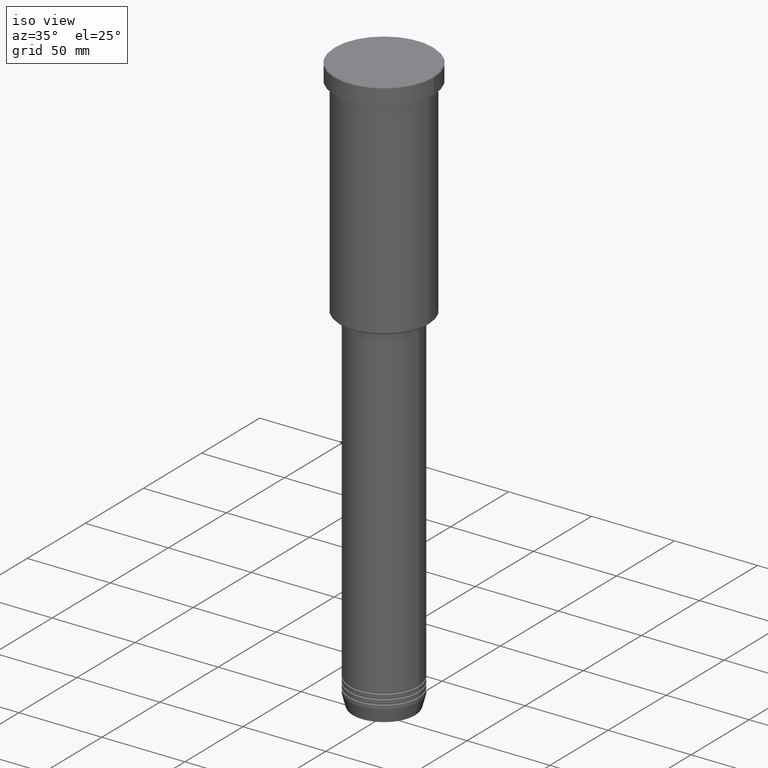
[diagram: clean part render]
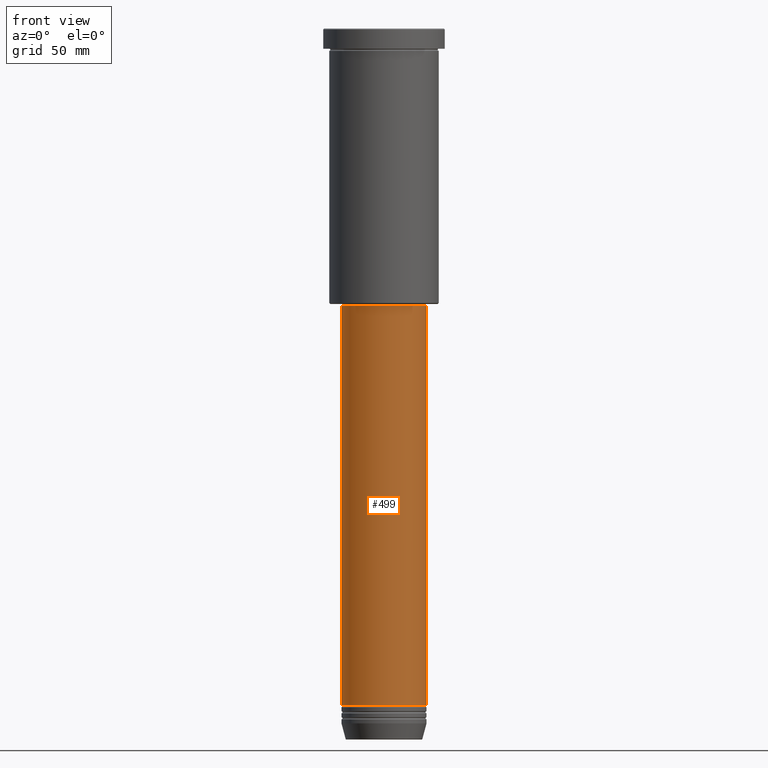
[diagram: tour spotlight — one face highlighted and labeled with its STEP entity id]
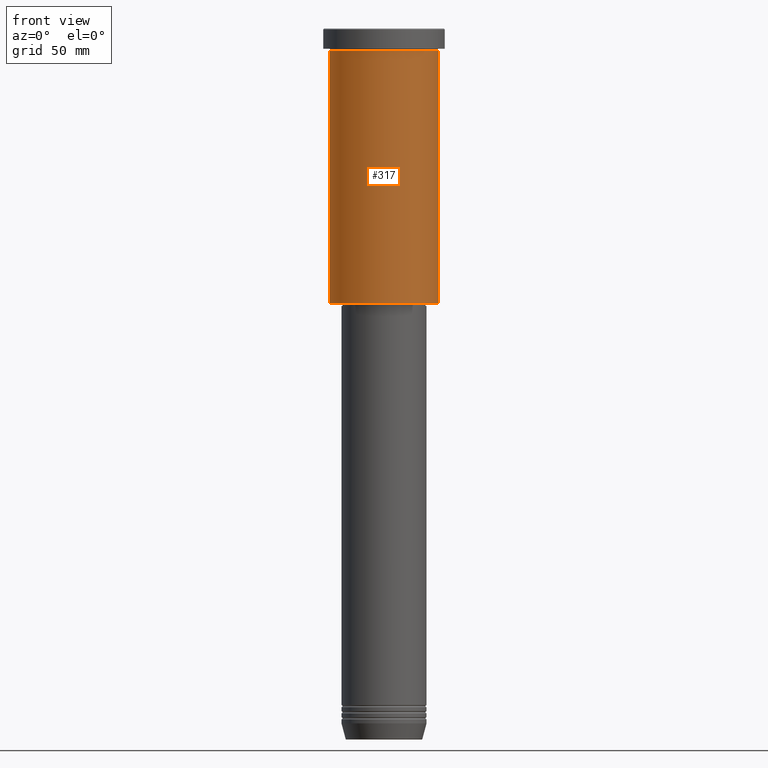
[diagram: tour spotlight — one face highlighted and labeled with its STEP entity id]
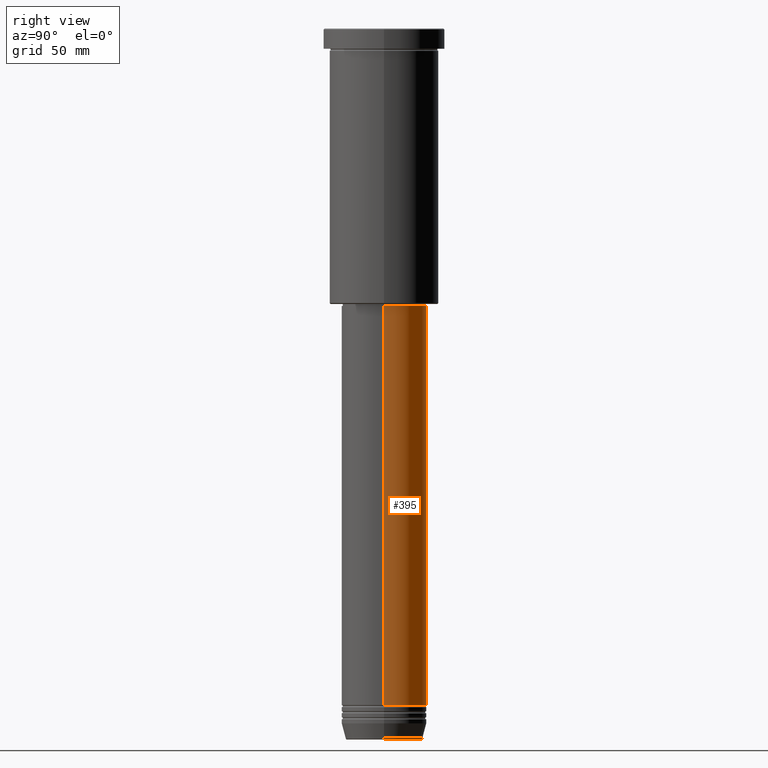
[diagram: tour spotlight — one face highlighted and labeled with its STEP entity id]
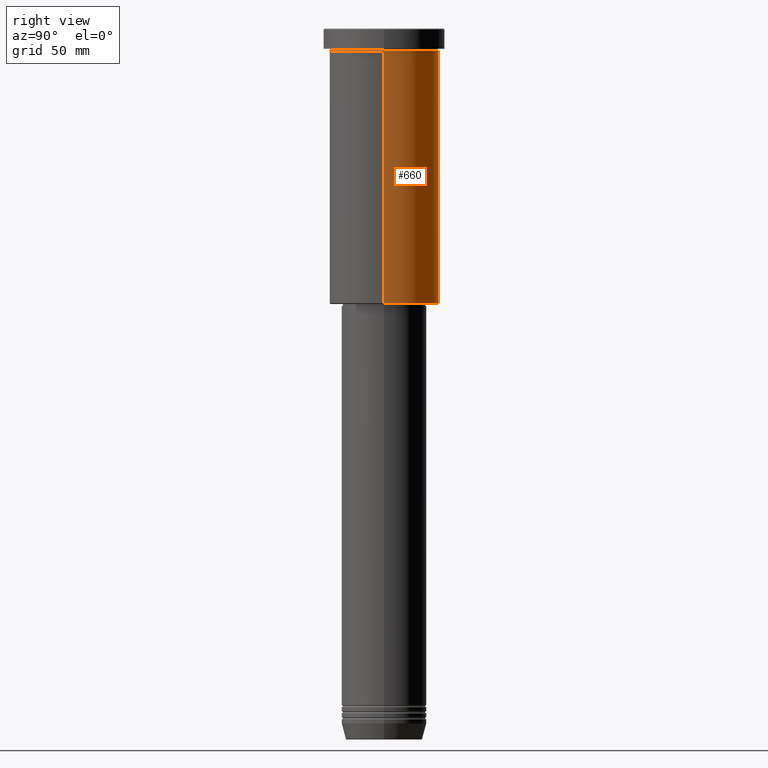
[diagram: tour spotlight — one face highlighted and labeled with its STEP entity id]
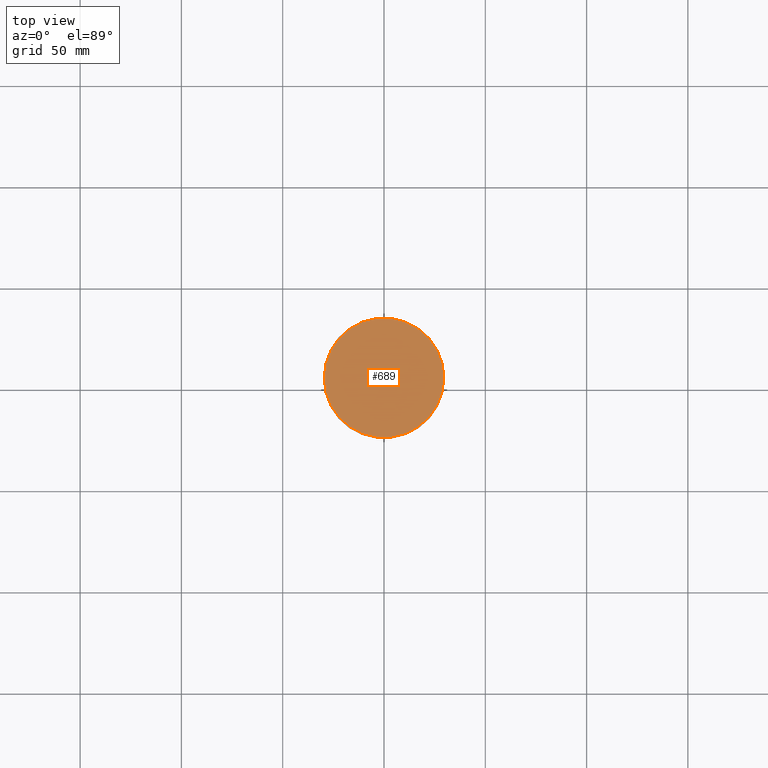
[diagram: tour spotlight — one face highlighted and labeled with its STEP entity id]
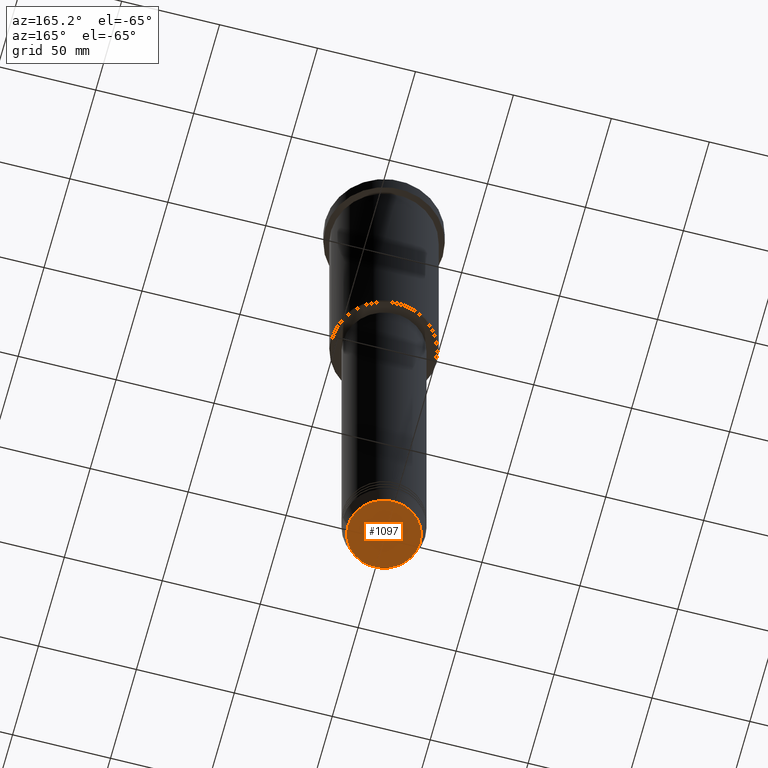
[diagram: tour spotlight — one face highlighted and labeled with its STEP entity id]
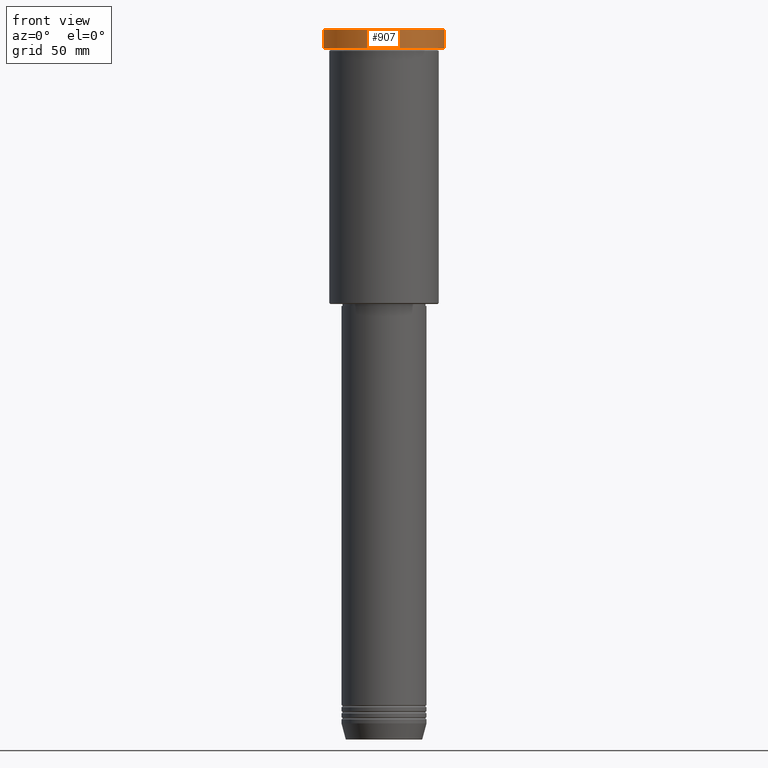
[diagram: tour spotlight — one face highlighted and labeled with its STEP entity id]
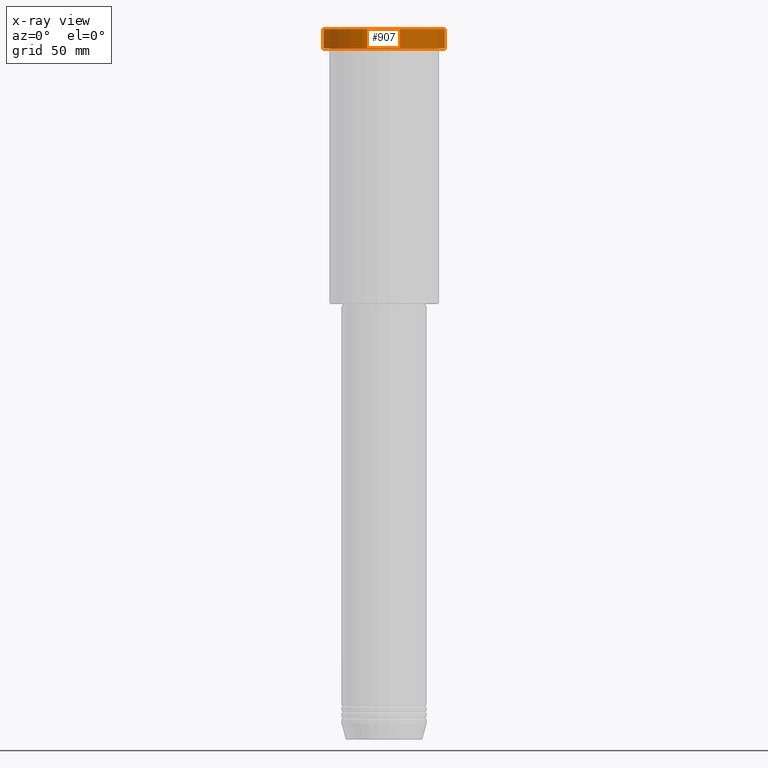
[diagram: x-ray of the same camera — body ghosted, this tour face saturated]
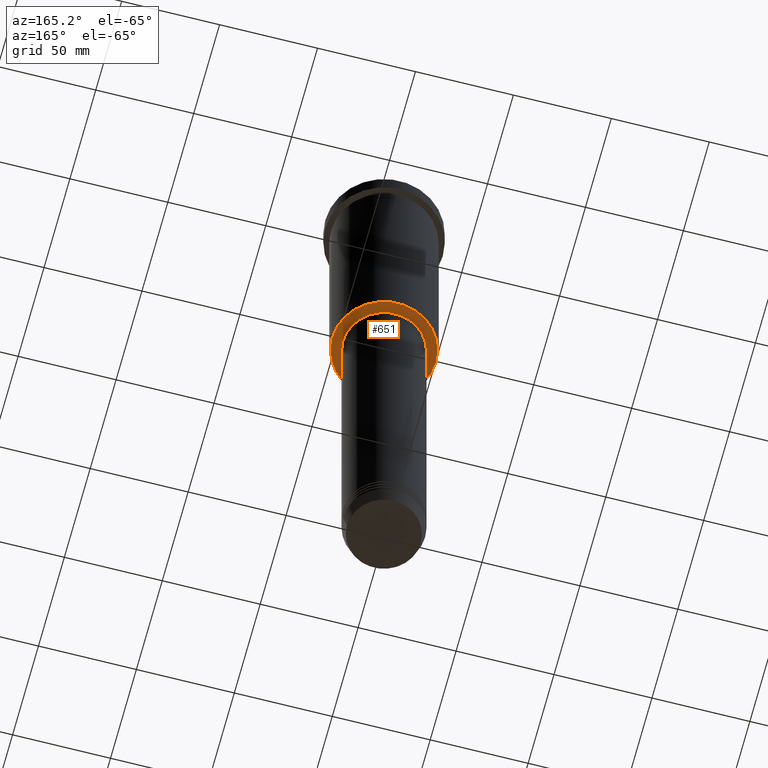
[diagram: tour spotlight — one face highlighted and labeled with its STEP entity id]
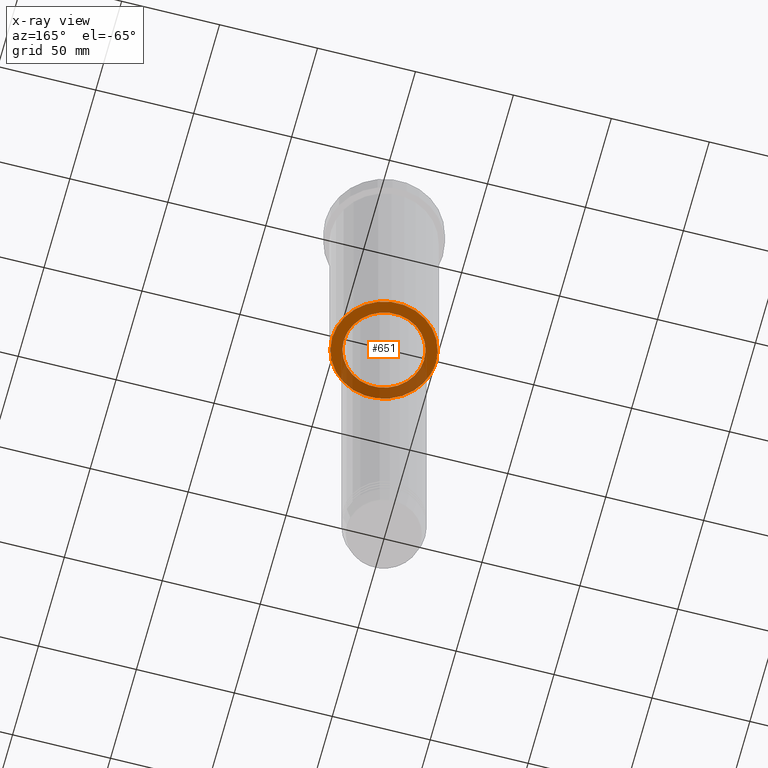
[diagram: x-ray of the same camera — body ghosted, this tour face saturated]
A machine part: a face-by-face anatomy tour. The part has 43 B-rep faces; the first image is the clean iso view, then the 8 largest visible faces are spotlighted one at a time (largest first), each with its STEP entity span.

Face 1 — front view, entity #499. In plain terms, the highlighted cylindrical surface (partial cylindrical patch) has radius 21 mm, axis along (-0, -0, 1).
Definition (entity closure, byte-faithful):
#3 = CARTESIAN_POINT ( 'NONE',  ( 21.00000000000000000, 0.000000000000000000, -333.9999999999999432 ) ) ;
#67 = AXIS2_PLACEMENT_3D ( 'NONE', #812, #716, #237 ) ;
#82 = DIRECTION ( 'NONE',  ( -0.000000000000000000, -0.000000000000000000, 1.000000000000000000 ) ) ;
#92 = EDGE_CURVE ( 'NONE', #301, #119, #800, .T. ) ;
#117 = AXIS2_PLACEMENT_3D ( 'NONE', #188, #1091, #647 ) ;
#119 = VERTEX_POINT ( 'NONE', #136 ) ;
#130 = EDGE_LOOP ( 'NONE', ( #602, #720, #273, #558 ) ) ;
#136 = CARTESIAN_POINT ( 'NONE',  ( 21.00000000000000000, 0.000000000000000000, -136.9999999999998579 ) ) ;
#188 = CARTESIAN_POINT ( 'NONE',  ( 0.000000000000000000, 0.000000000000000000, 0.000000000000000000 ) ) ;
#229 = LINE ( 'NONE', #342, #1093 ) ;
#237 = DIRECTION ( 'NONE',  ( 1.000000000000000000, 0.000000000000000000, 0.000000000000000000 ) ) ;
#242 = EDGE_CURVE ( 'NONE', #724, #301, #766, .T. ) ;
#254 = EDGE_CURVE ( 'NONE', #724, #821, #229, .T. ) ;
#273 = ORIENTED_EDGE ( 'NONE', *, *, #92, .T. ) ;
#301 = VERTEX_POINT ( 'NONE', #3 ) ;
#342 = CARTESIAN_POINT ( 'NONE',  ( -21.00000000000000000, 2.571758278209441661E-15, 0.000000000000000000 ) ) ;
#499 = ADVANCED_FACE ( 'NONE', ( #746 ), #546, .T. ) ;
#506 = DIRECTION ( 'NONE',  ( 1.000000000000000000, 0.000000000000000000, 0.000000000000000000 ) ) ;
#546 = CYLINDRICAL_SURFACE ( 'NONE', #117, 21.00000000000000000 ) ;
#558 = ORIENTED_EDGE ( 'NONE', *, *, #1065, .F. ) ;
#602 = ORIENTED_EDGE ( 'NONE', *, *, #254, .F. ) ;
#606 = CARTESIAN_POINT ( 'NONE',  ( 0.000000000000000000, 0.000000000000000000, -136.9999999999998579 ) ) ;
#644 = DIRECTION ( 'NONE',  ( -0.000000000000000000, -0.000000000000000000, 1.000000000000000000 ) ) ;
#647 = DIRECTION ( 'NONE',  ( 1.000000000000000000, 0.000000000000000000, 0.000000000000000000 ) ) ;
#679 = CARTESIAN_POINT ( 'NONE',  ( -21.00000000000000000, 2.571758278209441661E-15, -333.9999999999999432 ) ) ;
#716 = DIRECTION ( 'NONE',  ( -0.000000000000000000, -0.000000000000000000, 1.000000000000000000 ) ) ;
#720 = ORIENTED_EDGE ( 'NONE', *, *, #242, .T. ) ;
#724 = VERTEX_POINT ( 'NONE', #679 ) ;
#746 = FACE_OUTER_BOUND ( 'NONE', #130, .T. ) ;
#765 = VECTOR ( 'NONE', #82, 1000.000000000000000 ) ;
#766 = CIRCLE ( 'NONE', #67, 21.00000000000000000 ) ;
#770 = AXIS2_PLACEMENT_3D ( 'NONE', #606, #644, #506 ) ;
#800 = LINE ( 'NONE', #1140, #765 ) ;
#812 = CARTESIAN_POINT ( 'NONE',  ( 0.000000000000000000, 0.000000000000000000, -333.9999999999999432 ) ) ;
#821 = VERTEX_POINT ( 'NONE', #1056 ) ;
#927 = CIRCLE ( 'NONE', #770, 21.00000000000000000 ) ;
#954 = DIRECTION ( 'NONE',  ( -0.000000000000000000, -0.000000000000000000, 1.000000000000000000 ) ) ;
#1056 = CARTESIAN_POINT ( 'NONE',  ( -21.00000000000000000, 2.571758278209441661E-15, -136.9999999999998579 ) ) ;
#1065 = EDGE_CURVE ( 'NONE', #821, #119, #927, .T. ) ;
#1091 = DIRECTION ( 'NONE',  ( -0.000000000000000000, -0.000000000000000000, 1.000000000000000000 ) ) ;
#1093 = VECTOR ( 'NONE', #954, 1000.000000000000000 ) ;
#1140 = CARTESIAN_POINT ( 'NONE',  ( 21.00000000000000000, 0.000000000000000000, 0.000000000000000000 ) ) ;

Face 2 — front view, entity #317. In plain terms, the highlighted cylindrical surface (partial cylindrical patch) has radius 27 mm, axis along (-0, -0, 1).
Definition (entity closure, byte-faithful):
#2 = DIRECTION ( 'NONE',  ( -0.000000000000000000, -0.000000000000000000, 1.000000000000000000 ) ) ;
#15 = ORIENTED_EDGE ( 'NONE', *, *, #636, .T. ) ;
#90 = DIRECTION ( 'NONE',  ( -1.000000000000000000, 0.000000000000000000, 0.000000000000000000 ) ) ;
#109 = CARTESIAN_POINT ( 'NONE',  ( -27.00000000000000355, 3.306546357697854128E-15, 0.000000000000000000 ) ) ;
#115 = AXIS2_PLACEMENT_3D ( 'NONE', #728, #1004, #985 ) ;
#140 = VERTEX_POINT ( 'NONE', #517 ) ;
#151 = CARTESIAN_POINT ( 'NONE',  ( 27.00000000000000355, 0.000000000000000000, -10.99999999999999289 ) ) ;
#161 = ORIENTED_EDGE ( 'NONE', *, *, #637, .T. ) ;
#173 = CYLINDRICAL_SURFACE ( 'NONE', #115, 27.00000000000000355 ) ;
#184 = AXIS2_PLACEMENT_3D ( 'NONE', #912, #2, #90 ) ;
#203 = ORIENTED_EDGE ( 'NONE', *, *, #687, .F. ) ;
#226 = CARTESIAN_POINT ( 'NONE',  ( -27.00000000000000355, 3.306546357697854128E-15, -135.5000000000000000 ) ) ;
#249 = VERTEX_POINT ( 'NONE', #151 ) ;
#256 = DIRECTION ( 'NONE',  ( 1.000000000000000000, 0.000000000000000000, 0.000000000000000000 ) ) ;
#286 = ORIENTED_EDGE ( 'NONE', *, *, #1092, .F. ) ;
#317 = ADVANCED_FACE ( 'NONE', ( #352 ), #173, .T. ) ;
#352 = FACE_OUTER_BOUND ( 'NONE', #389, .T. ) ;
#372 = CARTESIAN_POINT ( 'NONE',  ( 27.00000000000000355, 0.000000000000000000, 0.000000000000000000 ) ) ;
#389 = EDGE_LOOP ( 'NONE', ( #286, #15, #161, #203 ) ) ;
#398 = CIRCLE ( 'NONE', #184, 27.00000000000000355 ) ;
#449 = AXIS2_PLACEMENT_3D ( 'NONE', #638, #723, #256 ) ;
#517 = CARTESIAN_POINT ( 'NONE',  ( -27.00000000000000355, 3.306546357697854128E-15, -10.99999999999999289 ) ) ;
#636 = EDGE_CURVE ( 'NONE', #1053, #1089, #398, .T. ) ;
#637 = EDGE_CURVE ( 'NONE', #1089, #249, #818, .T. ) ;
#638 = CARTESIAN_POINT ( 'NONE',  ( 0.000000000000000000, 0.000000000000000000, -10.99999999999999289 ) ) ;
#687 = EDGE_CURVE ( 'NONE', #140, #249, #816, .T. ) ;
#711 = VECTOR ( 'NONE', #1131, 1000.000000000000000 ) ;
#723 = DIRECTION ( 'NONE',  ( -0.000000000000000000, -0.000000000000000000, 1.000000000000000000 ) ) ;
#728 = CARTESIAN_POINT ( 'NONE',  ( 0.000000000000000000, 0.000000000000000000, 0.000000000000000000 ) ) ;
#738 = DIRECTION ( 'NONE',  ( -0.000000000000000000, -0.000000000000000000, 1.000000000000000000 ) ) ;
#816 = CIRCLE ( 'NONE', #449, 27.00000000000000355 ) ;
#818 = LINE ( 'NONE', #372, #835 ) ;
#835 = VECTOR ( 'NONE', #738, 1000.000000000000000 ) ;
#867 = CARTESIAN_POINT ( 'NONE',  ( 27.00000000000000355, 0.000000000000000000, -135.5000000000000000 ) ) ;
#875 = LINE ( 'NONE', #109, #711 ) ;
#912 = CARTESIAN_POINT ( 'NONE',  ( 0.000000000000000000, 0.000000000000000000, -135.5000000000000000 ) ) ;
#985 = DIRECTION ( 'NONE',  ( 1.000000000000000000, 0.000000000000000000, 0.000000000000000000 ) ) ;
#1004 = DIRECTION ( 'NONE',  ( -0.000000000000000000, -0.000000000000000000, 1.000000000000000000 ) ) ;
#1053 = VERTEX_POINT ( 'NONE', #226 ) ;
#1089 = VERTEX_POINT ( 'NONE', #867 ) ;
#1092 = EDGE_CURVE ( 'NONE', #1053, #140, #875, .T. ) ;
#1131 = DIRECTION ( 'NONE',  ( -0.000000000000000000, -0.000000000000000000, 1.000000000000000000 ) ) ;

Face 3 — right view, entity #395. In plain terms, the highlighted cylindrical surface (partial cylindrical patch) has radius 21 mm, axis along (-0, -0, 1).
Definition (entity closure, byte-faithful):
#3 = CARTESIAN_POINT ( 'NONE',  ( 21.00000000000000000, 0.000000000000000000, -333.9999999999999432 ) ) ;
#21 = ORIENTED_EDGE ( 'NONE', *, *, #491, .T. ) ;
#80 = EDGE_CURVE ( 'NONE', #119, #821, #334, .T. ) ;
#82 = DIRECTION ( 'NONE',  ( -0.000000000000000000, -0.000000000000000000, 1.000000000000000000 ) ) ;
#85 = AXIS2_PLACEMENT_3D ( 'NONE', #977, #919, #607 ) ;
#91 = CYLINDRICAL_SURFACE ( 'NONE', #528, 21.00000000000000000 ) ;
#92 = EDGE_CURVE ( 'NONE', #301, #119, #800, .T. ) ;
#119 = VERTEX_POINT ( 'NONE', #136 ) ;
#136 = CARTESIAN_POINT ( 'NONE',  ( 21.00000000000000000, 0.000000000000000000, -136.9999999999998579 ) ) ;
#138 = CIRCLE ( 'NONE', #167, 21.00000000000000000 ) ;
#167 = AXIS2_PLACEMENT_3D ( 'NONE', #559, #357, #177 ) ;
#177 = DIRECTION ( 'NONE',  ( 1.000000000000000000, 0.000000000000000000, 0.000000000000000000 ) ) ;
#229 = LINE ( 'NONE', #342, #1093 ) ;
#244 = ORIENTED_EDGE ( 'NONE', *, *, #254, .T. ) ;
#246 = CARTESIAN_POINT ( 'NONE',  ( 0.000000000000000000, 0.000000000000000000, 0.000000000000000000 ) ) ;
#254 = EDGE_CURVE ( 'NONE', #724, #821, #229, .T. ) ;
#301 = VERTEX_POINT ( 'NONE', #3 ) ;
#307 = ORIENTED_EDGE ( 'NONE', *, *, #80, .F. ) ;
#334 = CIRCLE ( 'NONE', #85, 21.00000000000000000 ) ;
#342 = CARTESIAN_POINT ( 'NONE',  ( -21.00000000000000000, 2.571758278209441661E-15, 0.000000000000000000 ) ) ;
#357 = DIRECTION ( 'NONE',  ( -0.000000000000000000, -0.000000000000000000, 1.000000000000000000 ) ) ;
#395 = ADVANCED_FACE ( 'NONE', ( #826 ), #91, .T. ) ;
#491 = EDGE_CURVE ( 'NONE', #301, #724, #138, .T. ) ;
#528 = AXIS2_PLACEMENT_3D ( 'NONE', #246, #639, #905 ) ;
#559 = CARTESIAN_POINT ( 'NONE',  ( 0.000000000000000000, 0.000000000000000000, -333.9999999999999432 ) ) ;
#607 = DIRECTION ( 'NONE',  ( 1.000000000000000000, 0.000000000000000000, 0.000000000000000000 ) ) ;
#639 = DIRECTION ( 'NONE',  ( -0.000000000000000000, -0.000000000000000000, 1.000000000000000000 ) ) ;
#679 = CARTESIAN_POINT ( 'NONE',  ( -21.00000000000000000, 2.571758278209441661E-15, -333.9999999999999432 ) ) ;
#724 = VERTEX_POINT ( 'NONE', #679 ) ;
#765 = VECTOR ( 'NONE', #82, 1000.000000000000000 ) ;
#779 = EDGE_LOOP ( 'NONE', ( #21, #244, #307, #1149 ) ) ;
#800 = LINE ( 'NONE', #1140, #765 ) ;
#821 = VERTEX_POINT ( 'NONE', #1056 ) ;
#826 = FACE_OUTER_BOUND ( 'NONE', #779, .T. ) ;
#905 = DIRECTION ( 'NONE',  ( 1.000000000000000000, 0.000000000000000000, 0.000000000000000000 ) ) ;
#919 = DIRECTION ( 'NONE',  ( -0.000000000000000000, -0.000000000000000000, 1.000000000000000000 ) ) ;
#954 = DIRECTION ( 'NONE',  ( -0.000000000000000000, -0.000000000000000000, 1.000000000000000000 ) ) ;
#977 = CARTESIAN_POINT ( 'NONE',  ( 0.000000000000000000, 0.000000000000000000, -136.9999999999998579 ) ) ;
#1056 = CARTESIAN_POINT ( 'NONE',  ( -21.00000000000000000, 2.571758278209441661E-15, -136.9999999999998579 ) ) ;
#1093 = VECTOR ( 'NONE', #954, 1000.000000000000000 ) ;
#1140 = CARTESIAN_POINT ( 'NONE',  ( 21.00000000000000000, 0.000000000000000000, 0.000000000000000000 ) ) ;
#1149 = ORIENTED_EDGE ( 'NONE', *, *, #92, .F. ) ;

Face 4 — right view, entity #660. In plain terms, the highlighted cylindrical surface (partial cylindrical patch) has radius 27 mm, axis along (-0, -0, 1).
Definition (entity closure, byte-faithful):
#1 = EDGE_CURVE ( 'NONE', #1089, #1053, #481, .T. ) ;
#59 = ORIENTED_EDGE ( 'NONE', *, *, #637, .F. ) ;
#73 = FACE_OUTER_BOUND ( 'NONE', #904, .T. ) ;
#83 = DIRECTION ( 'NONE',  ( 1.000000000000000000, 0.000000000000000000, 0.000000000000000000 ) ) ;
#109 = CARTESIAN_POINT ( 'NONE',  ( -27.00000000000000355, 3.306546357697854128E-15, 0.000000000000000000 ) ) ;
#140 = VERTEX_POINT ( 'NONE', #517 ) ;
#151 = CARTESIAN_POINT ( 'NONE',  ( 27.00000000000000355, 0.000000000000000000, -10.99999999999999289 ) ) ;
#154 = ORIENTED_EDGE ( 'NONE', *, *, #1, .T. ) ;
#226 = CARTESIAN_POINT ( 'NONE',  ( -27.00000000000000355, 3.306546357697854128E-15, -135.5000000000000000 ) ) ;
#249 = VERTEX_POINT ( 'NONE', #151 ) ;
#312 = CIRCLE ( 'NONE', #708, 27.00000000000000355 ) ;
#347 = CARTESIAN_POINT ( 'NONE',  ( 0.000000000000000000, 0.000000000000000000, 0.000000000000000000 ) ) ;
#372 = CARTESIAN_POINT ( 'NONE',  ( 27.00000000000000355, 0.000000000000000000, 0.000000000000000000 ) ) ;
#460 = AXIS2_PLACEMENT_3D ( 'NONE', #773, #1110, #1026 ) ;
#481 = CIRCLE ( 'NONE', #460, 27.00000000000000355 ) ;
#517 = CARTESIAN_POINT ( 'NONE',  ( -27.00000000000000355, 3.306546357697854128E-15, -10.99999999999999289 ) ) ;
#536 = EDGE_CURVE ( 'NONE', #249, #140, #312, .T. ) ;
#637 = EDGE_CURVE ( 'NONE', #1089, #249, #818, .T. ) ;
#660 = ADVANCED_FACE ( 'NONE', ( #73 ), #1159, .T. ) ;
#708 = AXIS2_PLACEMENT_3D ( 'NONE', #1023, #783, #861 ) ;
#711 = VECTOR ( 'NONE', #1131, 1000.000000000000000 ) ;
#718 = DIRECTION ( 'NONE',  ( -0.000000000000000000, -0.000000000000000000, 1.000000000000000000 ) ) ;
#738 = DIRECTION ( 'NONE',  ( -0.000000000000000000, -0.000000000000000000, 1.000000000000000000 ) ) ;
#741 = ORIENTED_EDGE ( 'NONE', *, *, #1092, .T. ) ;
#773 = CARTESIAN_POINT ( 'NONE',  ( 0.000000000000000000, 0.000000000000000000, -135.5000000000000000 ) ) ;
#783 = DIRECTION ( 'NONE',  ( -0.000000000000000000, -0.000000000000000000, 1.000000000000000000 ) ) ;
#818 = LINE ( 'NONE', #372, #835 ) ;
#835 = VECTOR ( 'NONE', #738, 1000.000000000000000 ) ;
#861 = DIRECTION ( 'NONE',  ( 1.000000000000000000, 0.000000000000000000, 0.000000000000000000 ) ) ;
#867 = CARTESIAN_POINT ( 'NONE',  ( 27.00000000000000355, 0.000000000000000000, -135.5000000000000000 ) ) ;
#875 = LINE ( 'NONE', #109, #711 ) ;
#904 = EDGE_LOOP ( 'NONE', ( #154, #741, #987, #59 ) ) ;
#987 = ORIENTED_EDGE ( 'NONE', *, *, #536, .F. ) ;
#1023 = CARTESIAN_POINT ( 'NONE',  ( 0.000000000000000000, 0.000000000000000000, -10.99999999999999289 ) ) ;
#1026 = DIRECTION ( 'NONE',  ( -1.000000000000000000, 0.000000000000000000, 0.000000000000000000 ) ) ;
#1053 = VERTEX_POINT ( 'NONE', #226 ) ;
#1089 = VERTEX_POINT ( 'NONE', #867 ) ;
#1092 = EDGE_CURVE ( 'NONE', #1053, #140, #875, .T. ) ;
#1110 = DIRECTION ( 'NONE',  ( -0.000000000000000000, -0.000000000000000000, 1.000000000000000000 ) ) ;
#1111 = AXIS2_PLACEMENT_3D ( 'NONE', #347, #718, #83 ) ;
#1131 = DIRECTION ( 'NONE',  ( -0.000000000000000000, -0.000000000000000000, 1.000000000000000000 ) ) ;
#1159 = CYLINDRICAL_SURFACE ( 'NONE', #1111, 27.00000000000000355 ) ;

Face 5 — top view, entity #689. In plain terms, the highlighted planar face has unit normal (0, -0, 1).
Definition (entity closure, byte-faithful):
#84 = VERTEX_POINT ( 'NONE', #501 ) ;
#112 = DIRECTION ( 'NONE',  ( 1.000000000000000000, 0.000000000000000000, 0.000000000000000000 ) ) ;
#145 = AXIS2_PLACEMENT_3D ( 'NONE', #297, #489, #945 ) ;
#189 = CARTESIAN_POINT ( 'NONE',  ( -29.50000000000002487, 0.000000000000000000, 0.000000000000000000 ) ) ;
#223 = EDGE_LOOP ( 'NONE', ( #763, #631 ) ) ;
#297 = CARTESIAN_POINT ( 'NONE',  ( 0.000000000000000000, 0.000000000000000000, 0.000000000000000000 ) ) ;
#378 = AXIS2_PLACEMENT_3D ( 'NONE', #827, #1181, #1100 ) ;
#441 = PLANE ( 'NONE',  #378 ) ;
#489 = DIRECTION ( 'NONE',  ( -0.000000000000000000, -0.000000000000000000, 1.000000000000000000 ) ) ;
#501 = CARTESIAN_POINT ( 'NONE',  ( 29.50000000000002487, 3.643324227463376968E-15, 0.000000000000000000 ) ) ;
#625 = VERTEX_POINT ( 'NONE', #189 ) ;
#631 = ORIENTED_EDGE ( 'NONE', *, *, #1144, .T. ) ;
#684 = CARTESIAN_POINT ( 'NONE',  ( 0.000000000000000000, 0.000000000000000000, 0.000000000000000000 ) ) ;
#689 = ADVANCED_FACE ( 'NONE', ( #1085 ), #441, .T. ) ;
#750 = AXIS2_PLACEMENT_3D ( 'NONE', #684, #952, #112 ) ;
#763 = ORIENTED_EDGE ( 'NONE', *, *, #1105, .T. ) ;
#827 = CARTESIAN_POINT ( 'NONE',  ( 0.000000000000000000, 0.000000000000000000, 0.000000000000000000 ) ) ;
#872 = CIRCLE ( 'NONE', #750, 29.50000000000002487 ) ;
#890 = CIRCLE ( 'NONE', #145, 29.50000000000002487 ) ;
#945 = DIRECTION ( 'NONE',  ( 1.000000000000000000, 0.000000000000000000, 0.000000000000000000 ) ) ;
#952 = DIRECTION ( 'NONE',  ( -0.000000000000000000, -0.000000000000000000, 1.000000000000000000 ) ) ;
#1085 = FACE_OUTER_BOUND ( 'NONE', #223, .T. ) ;
#1100 = DIRECTION ( 'NONE',  ( 1.000000000000000000, 0.000000000000000000, 0.000000000000000000 ) ) ;
#1105 = EDGE_CURVE ( 'NONE', #625, #84, #890, .T. ) ;
#1144 = EDGE_CURVE ( 'NONE', #84, #625, #872, .T. ) ;
#1181 = DIRECTION ( 'NONE',  ( 0.000000000000000000, -0.000000000000000000, 1.000000000000000000 ) ) ;

Face 6 — auxiliary view, entity #1097. In plain terms, the highlighted planar face has unit normal (0, -0, 1).
Definition (entity closure, byte-faithful):
#208 = CARTESIAN_POINT ( 'NONE',  ( 0.000000000000000000, 0.000000000000000000, -351.0000000000000000 ) ) ;
#268 = DIRECTION ( 'NONE',  ( 1.000000000000000000, 0.000000000000000000, 0.000000000000000000 ) ) ;
#364 = CARTESIAN_POINT ( 'NONE',  ( 0.000000000000000000, 0.000000000000000000, -351.0000000000000000 ) ) ;
#455 = ORIENTED_EDGE ( 'NONE', *, *, #702, .T. ) ;
#459 = DIRECTION ( 'NONE',  ( 1.000000000000000000, 0.000000000000000000, 0.000000000000000000 ) ) ;
#469 = FACE_OUTER_BOUND ( 'NONE', #552, .T. ) ;
#476 = CARTESIAN_POINT ( 'NONE',  ( 0.000000000000000000, 0.000000000000000000, -351.0000000000000000 ) ) ;
#480 = DIRECTION ( 'NONE',  ( 0.000000000000000000, -0.000000000000000000, 1.000000000000000000 ) ) ;
#485 = CIRCLE ( 'NONE', #889, 18.47274296656153680 ) ;
#529 = CIRCLE ( 'NONE', #1061, 18.47274296656153680 ) ;
#552 = EDGE_LOOP ( 'NONE', ( #455, #786 ) ) ;
#576 = PLANE ( 'NONE',  #669 ) ;
#587 = DIRECTION ( 'NONE',  ( 1.000000000000000000, 0.000000000000000000, 0.000000000000000000 ) ) ;
#657 = VERTEX_POINT ( 'NONE', #1071 ) ;
#669 = AXIS2_PLACEMENT_3D ( 'NONE', #208, #480, #587 ) ;
#702 = EDGE_CURVE ( 'NONE', #1019, #657, #529, .T. ) ;
#772 = EDGE_CURVE ( 'NONE', #657, #1019, #485, .T. ) ;
#786 = ORIENTED_EDGE ( 'NONE', *, *, #772, .T. ) ;
#805 = CARTESIAN_POINT ( 'NONE',  ( 18.47274296656153680, 0.000000000000000000, -351.0000000000000000 ) ) ;
#889 = AXIS2_PLACEMENT_3D ( 'NONE', #364, #1087, #268 ) ;
#935 = DIRECTION ( 'NONE',  ( 0.000000000000000000, 0.000000000000000000, -1.000000000000000000 ) ) ;
#1019 = VERTEX_POINT ( 'NONE', #805 ) ;
#1061 = AXIS2_PLACEMENT_3D ( 'NONE', #476, #935, #459 ) ;
#1071 = CARTESIAN_POINT ( 'NONE',  ( -18.47274296656153680, 2.291831503831603257E-15, -351.0000000000000000 ) ) ;
#1087 = DIRECTION ( 'NONE',  ( 0.000000000000000000, 0.000000000000000000, -1.000000000000000000 ) ) ;
#1097 = ADVANCED_FACE ( 'NONE', ( #469 ), #576, .F. ) ;

Face 7 — front view, entity #907. An x-ray twin of the same camera follows (body ghosted, this face saturated) — the face is partly hidden behind the body. In plain terms, the highlighted cylindrical surface (partial cylindrical patch) has radius 30 mm, axis along (-0, -0, 1).
Definition (entity closure, byte-faithful):
#26 = AXIS2_PLACEMENT_3D ( 'NONE', #165, #1055, #1153 ) ;
#43 = DIRECTION ( 'NONE',  ( 1.000000000000000000, 0.000000000000000000, 0.000000000000000000 ) ) ;
#63 = VERTEX_POINT ( 'NONE', #220 ) ;
#68 = CYLINDRICAL_SURFACE ( 'NONE', #26, 30.00000000000000000 ) ;
#146 = DIRECTION ( 'NONE',  ( 1.000000000000000000, 0.000000000000000000, 0.000000000000000000 ) ) ;
#165 = CARTESIAN_POINT ( 'NONE',  ( 0.000000000000000000, 0.000000000000000000, 0.000000000000000000 ) ) ;
#171 = CARTESIAN_POINT ( 'NONE',  ( 30.00000000000000000, 0.000000000000000000, -9.999999999999992895 ) ) ;
#179 = CARTESIAN_POINT ( 'NONE',  ( 30.00000000000000000, 0.000000000000000000, -0.5000000000000073275 ) ) ;
#181 = EDGE_LOOP ( 'NONE', ( #349, #213, #704, #1028 ) ) ;
#210 = VECTOR ( 'NONE', #218, 1000.000000000000000 ) ;
#213 = ORIENTED_EDGE ( 'NONE', *, *, #457, .T. ) ;
#218 = DIRECTION ( 'NONE',  ( -0.000000000000000000, -0.000000000000000000, 1.000000000000000000 ) ) ;
#220 = CARTESIAN_POINT ( 'NONE',  ( -30.00000000000000000, 3.673940397442059178E-15, -9.999999999999992895 ) ) ;
#250 = EDGE_CURVE ( 'NONE', #663, #646, #1151, .T. ) ;
#290 = CIRCLE ( 'NONE', #362, 30.00000000000000000 ) ;
#349 = ORIENTED_EDGE ( 'NONE', *, *, #824, .F. ) ;
#362 = AXIS2_PLACEMENT_3D ( 'NONE', #974, #799, #146 ) ;
#414 = VECTOR ( 'NONE', #475, 1000.000000000000000 ) ;
#456 = EDGE_CURVE ( 'NONE', #646, #903, #1060, .T. ) ;
#457 = EDGE_CURVE ( 'NONE', #63, #663, #290, .T. ) ;
#475 = DIRECTION ( 'NONE',  ( -0.000000000000000000, -0.000000000000000000, 1.000000000000000000 ) ) ;
#484 = LINE ( 'NONE', #591, #414 ) ;
#498 = DIRECTION ( 'NONE',  ( 0.000000000000000000, 0.000000000000000000, -1.000000000000000000 ) ) ;
#591 = CARTESIAN_POINT ( 'NONE',  ( -30.00000000000000000, 3.673940397442059178E-15, 0.000000000000000000 ) ) ;
#611 = CARTESIAN_POINT ( 'NONE',  ( 0.000000000000000000, 0.000000000000000000, -0.5000000000000073275 ) ) ;
#646 = VERTEX_POINT ( 'NONE', #179 ) ;
#663 = VERTEX_POINT ( 'NONE', #171 ) ;
#704 = ORIENTED_EDGE ( 'NONE', *, *, #250, .T. ) ;
#730 = CARTESIAN_POINT ( 'NONE',  ( -30.00000000000000000, 3.673940397442059178E-15, -0.5000000000000073275 ) ) ;
#799 = DIRECTION ( 'NONE',  ( -0.000000000000000000, -0.000000000000000000, 1.000000000000000000 ) ) ;
#824 = EDGE_CURVE ( 'NONE', #63, #903, #484, .T. ) ;
#887 = AXIS2_PLACEMENT_3D ( 'NONE', #611, #498, #43 ) ;
#903 = VERTEX_POINT ( 'NONE', #730 ) ;
#907 = ADVANCED_FACE ( 'NONE', ( #1076 ), #68, .T. ) ;
#974 = CARTESIAN_POINT ( 'NONE',  ( 0.000000000000000000, 0.000000000000000000, -9.999999999999992895 ) ) ;
#1028 = ORIENTED_EDGE ( 'NONE', *, *, #456, .T. ) ;
#1054 = CARTESIAN_POINT ( 'NONE',  ( 30.00000000000000000, 0.000000000000000000, 0.000000000000000000 ) ) ;
#1055 = DIRECTION ( 'NONE',  ( -0.000000000000000000, -0.000000000000000000, 1.000000000000000000 ) ) ;
#1060 = CIRCLE ( 'NONE', #887, 30.00000000000000000 ) ;
#1076 = FACE_OUTER_BOUND ( 'NONE', #181, .T. ) ;
#1151 = LINE ( 'NONE', #1054, #210 ) ;
#1153 = DIRECTION ( 'NONE',  ( 1.000000000000000000, 0.000000000000000000, 0.000000000000000000 ) ) ;

Face 8 — auxiliary view, entity #651. An x-ray twin of the same camera follows (body ghosted, this face saturated) — the face is partly hidden behind the body. In plain terms, the highlighted planar face has unit normal (0, 0, -1).
Definition (entity closure, byte-faithful):
#13 = EDGE_LOOP ( 'NONE', ( #752, #586 ) ) ;
#20 = VERTEX_POINT ( 'NONE', #101 ) ;
#70 = CIRCLE ( 'NONE', #911, 20.50000000000000000 ) ;
#97 = CIRCLE ( 'NONE', #288, 20.50000000000000000 ) ;
#101 = CARTESIAN_POINT ( 'NONE',  ( 20.50000000000000000, 0.000000000000000000, -135.9999999999999716 ) ) ;
#129 = CARTESIAN_POINT ( 'NONE',  ( -26.50000000000002487, 3.275930187719171524E-15, -136.0000000000000000 ) ) ;
#148 = VERTEX_POINT ( 'NONE', #129 ) ;
#152 = DIRECTION ( 'NONE',  ( -1.000000000000000000, 0.000000000000000000, -0.000000000000000000 ) ) ;
#180 = EDGE_CURVE ( 'NONE', #191, #20, #97, .T. ) ;
#191 = VERTEX_POINT ( 'NONE', #966 ) ;
#198 = AXIS2_PLACEMENT_3D ( 'NONE', #564, #423, #709 ) ;
#224 = DIRECTION ( 'NONE',  ( -0.000000000000000000, -0.000000000000000000, 1.000000000000000000 ) ) ;
#257 = ORIENTED_EDGE ( 'NONE', *, *, #180, .T. ) ;
#264 = CARTESIAN_POINT ( 'NONE',  ( 26.50000000000002487, 0.000000000000000000, -136.0000000000000000 ) ) ;
#272 = DIRECTION ( 'NONE',  ( 0.000000000000000000, 0.000000000000000000, -1.000000000000000000 ) ) ;
#275 = DIRECTION ( 'NONE',  ( 0.000000000000000000, 0.000000000000000000, -1.000000000000000000 ) ) ;
#285 = EDGE_CURVE ( 'NONE', #683, #148, #814, .T. ) ;
#288 = AXIS2_PLACEMENT_3D ( 'NONE', #1059, #224, #330 ) ;
#293 = CARTESIAN_POINT ( 'NONE',  ( 0.000000000000000000, 0.000000000000000000, -135.9999999999999716 ) ) ;
#330 = DIRECTION ( 'NONE',  ( 1.000000000000000000, 0.000000000000000000, 0.000000000000000000 ) ) ;
#353 = CARTESIAN_POINT ( 'NONE',  ( 0.000000000000000000, 27.00000000000000355, -136.0000000000000000 ) ) ;
#423 = DIRECTION ( 'NONE',  ( 0.000000000000000000, 0.000000000000000000, -1.000000000000000000 ) ) ;
#437 = ORIENTED_EDGE ( 'NONE', *, *, #946, .T. ) ;
#453 = FACE_OUTER_BOUND ( 'NONE', #13, .T. ) ;
#507 = AXIS2_PLACEMENT_3D ( 'NONE', #740, #272, #838 ) ;
#547 = FACE_BOUND ( 'NONE', #695, .T. ) ;
#564 = CARTESIAN_POINT ( 'NONE',  ( 0.000000000000000000, 0.000000000000000000, -136.0000000000000000 ) ) ;
#586 = ORIENTED_EDGE ( 'NONE', *, *, #599, .T. ) ;
#599 = EDGE_CURVE ( 'NONE', #148, #683, #1177, .T. ) ;
#651 = ADVANCED_FACE ( 'NONE', ( #453, #547 ), #743, .T. ) ;
#680 = DIRECTION ( 'NONE',  ( 1.000000000000000000, 0.000000000000000000, 0.000000000000000000 ) ) ;
#683 = VERTEX_POINT ( 'NONE', #264 ) ;
#695 = EDGE_LOOP ( 'NONE', ( #437, #257 ) ) ;
#709 = DIRECTION ( 'NONE',  ( -1.000000000000000000, 0.000000000000000000, 0.000000000000000000 ) ) ;
#740 = CARTESIAN_POINT ( 'NONE',  ( 0.000000000000000000, 0.000000000000000000, -136.0000000000000000 ) ) ;
#743 = PLANE ( 'NONE',  #973 ) ;
#751 = DIRECTION ( 'NONE',  ( -0.000000000000000000, -0.000000000000000000, 1.000000000000000000 ) ) ;
#752 = ORIENTED_EDGE ( 'NONE', *, *, #285, .T. ) ;
#814 = CIRCLE ( 'NONE', #507, 26.50000000000002487 ) ;
#838 = DIRECTION ( 'NONE',  ( -1.000000000000000000, 0.000000000000000000, 0.000000000000000000 ) ) ;
#911 = AXIS2_PLACEMENT_3D ( 'NONE', #293, #751, #680 ) ;
#946 = EDGE_CURVE ( 'NONE', #20, #191, #70, .T. ) ;
#966 = CARTESIAN_POINT ( 'NONE',  ( -20.50000000000000000, 2.510525938252074481E-15, -135.9999999999999716 ) ) ;
#973 = AXIS2_PLACEMENT_3D ( 'NONE', #353, #275, #152 ) ;
#1059 = CARTESIAN_POINT ( 'NONE',  ( 0.000000000000000000, 0.000000000000000000, -135.9999999999999716 ) ) ;
#1177 = CIRCLE ( 'NONE', #198, 26.50000000000002487 ) ;